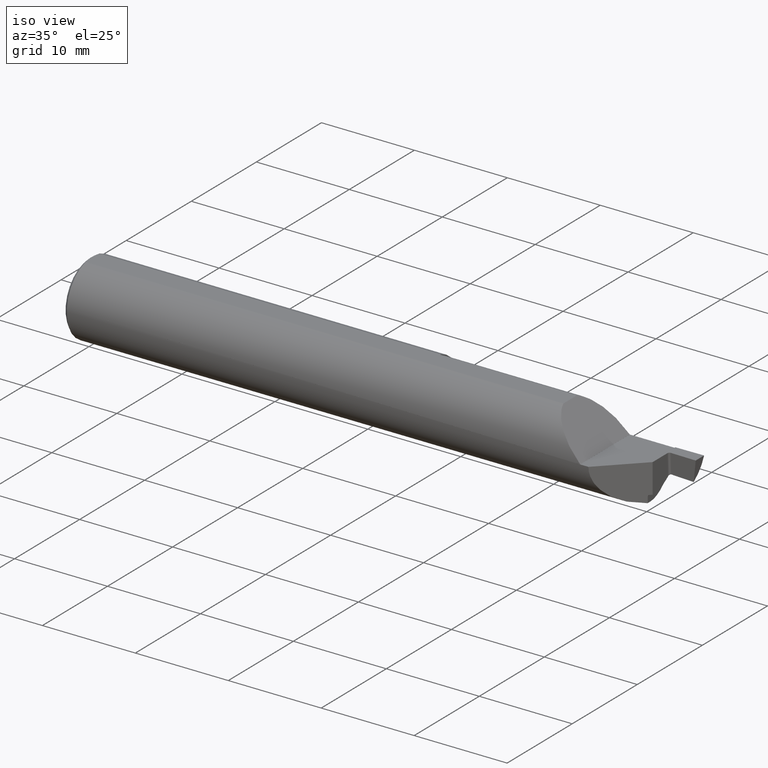
[diagram: clean part render]
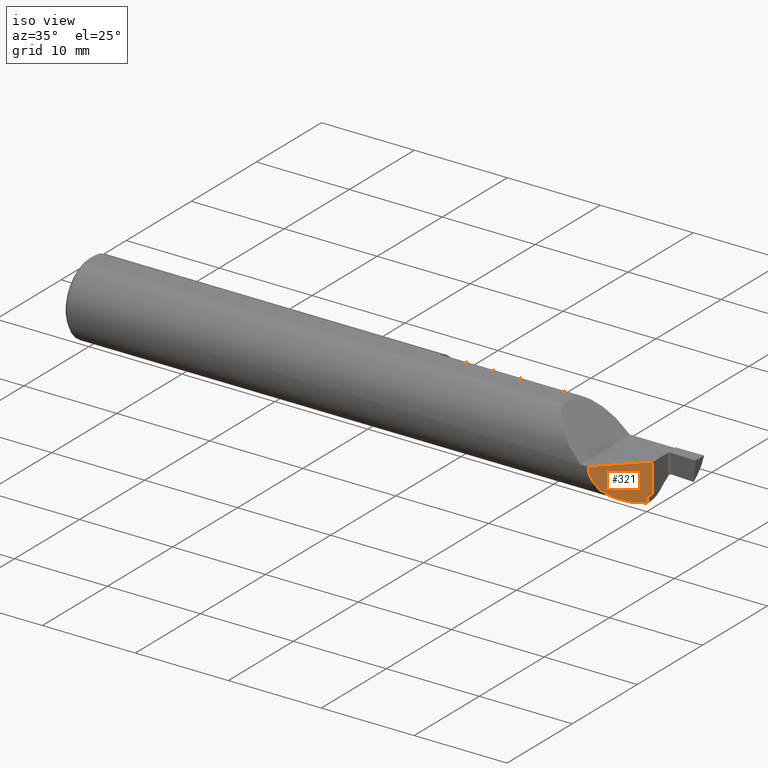
[diagram: same view with one face highlighted and labeled with its STEP entity id]
A machine part, iso view. The second image highlights one B-rep face of the part: STEP entity #321.
In plain terms, the highlighted planar face has unit normal (-0.7071, 0.7071, 0).
Its self-contained STEP definition (entity closure, byte-faithful):
#13 = EDGE_LOOP ( 'NONE', ( #710, #538, #736, #386, #478, #340 ) ) ;
#17 = VERTEX_POINT ( 'NONE', #357 ) ;
#26 = CARTESIAN_POINT ( 'NONE',  ( 2.377763926017768981, -0.003336073982230913955, -0.1249361410656338184 ) ) ;
#41 = VERTEX_POINT ( 'NONE', #504 ) ;
#67 = DIRECTION ( 'NONE',  ( 0.000000000000000000, 0.000000000000000000, -1.000000000000000000 ) ) ;
#81 = PLANE ( 'NONE',  #327 ) ;
#113 = EDGE_CURVE ( 'NONE', #186, #148, #396, .T. ) ;
#145 = CARTESIAN_POINT ( 'NONE',  ( 2.377763926017768981, -0.003336073982230913955, -0.1249361410656338184 ) ) ;
#148 = VERTEX_POINT ( 'NONE', #774 ) ;
#150 = CARTESIAN_POINT ( 'NONE',  ( 2.373633180895108996, -0.007466819104891537703, -0.1267740301659952828 ) ) ;
#167 = EDGE_CURVE ( 'NONE', #204, #41, #586, .T. ) ;
#176 = EDGE_CURVE ( 'NONE', #539, #186, #313, .T. ) ;
#186 = VERTEX_POINT ( 'NONE', #447 ) ;
#187 = B_SPLINE_CURVE_WITH_KNOTS ( 'NONE', 3,
 ( #276, #212, #150, #793, #272, #26 ),
 .UNSPECIFIED., .F., .F.,
 ( 4, 2, 4 ),
 ( 0.000000000000000000, 0.0001183898561048860596, 0.0002367797122097721192 ),
 .UNSPECIFIED. ) ;
#199 = CARTESIAN_POINT ( 'NONE',  ( 2.157499999999999751, -0.2235999999999995491, 0.000000000000000000 ) ) ;
#203 = CARTESIAN_POINT ( 'NONE',  ( 2.385000000000000231, 0.003900000000000025408, -0.1249751148411059609 ) ) ;
#204 = VERTEX_POINT ( 'NONE', #203 ) ;
#212 = CARTESIAN_POINT ( 'NONE',  ( 2.372848955506935642, -0.008251044493063981050, -0.1281467683057909701 ) ) ;
#217 = FACE_OUTER_BOUND ( 'NONE', #13, .T. ) ;
#240 = EDGE_CURVE ( 'NONE', #148, #41, #521, .T. ) ;
#272 = CARTESIAN_POINT ( 'NONE',  ( 2.376656873800778502, -0.004443126199221629144, -0.1249043962154921389 ) ) ;
#276 = CARTESIAN_POINT ( 'NONE',  ( 2.372848955506936086, -0.008251044493063981050, -0.1297264338229360825 ) ) ;
#302 = VECTOR ( 'NONE', #823, 39.37007874015748143 ) ;
#313 = LINE ( 'NONE', #654, #408 ) ;
#321 = ADVANCED_FACE ( 'NONE', ( #217 ), #81, .F. ) ;
#327 = AXIS2_PLACEMENT_3D ( 'NONE', #483, #673, #332 ) ;
#332 = DIRECTION ( 'NONE',  ( -0.7071067811865486830, -0.7071067811865464625, 0.000000000000000000 ) ) ;
#335 = EDGE_CURVE ( 'NONE', #539, #17, #187, .T. ) ;
#340 = ORIENTED_EDGE ( 'NONE', *, *, #240, .F. ) ;
#356 = VECTOR ( 'NONE', #721, 39.37007874015748143 ) ;
#357 = CARTESIAN_POINT ( 'NONE',  ( 2.377763926017768981, -0.003336073982230913955, -0.1249361410656338184 ) ) ;
#366 = CARTESIAN_POINT ( 'NONE',  ( 2.285319229756169968, -0.09578077024382962434, -0.1512487100964495512 ) ) ;
#384 = EDGE_CURVE ( 'NONE', #17, #204, #582, .T. ) ;
#386 = ORIENTED_EDGE ( 'NONE', *, *, #384, .T. ) ;
#396 =( BOUNDED_CURVE ( )  B_SPLINE_CURVE ( 3, ( #698, #366, #640, #507 ),
 .UNSPECIFIED., .F., .F. ) 
 B_SPLINE_CURVE_WITH_KNOTS ( ( 4, 4 ),
 ( 4.765271052396672147, 6.283185307179586232 ),
 .UNSPECIFIED. ) 
 CURVE ( )  GEOMETRIC_REPRESENTATION_ITEM ( )  RATIONAL_B_SPLINE_CURVE ( ( 1.000000000000000000, 0.8170360491703279049, 0.8170360491703279049, 1.000000000000000000 ) ) 
 REPRESENTATION_ITEM ( '' )  );
#408 = VECTOR ( 'NONE', #67, 39.37007874015748143 ) ;
#447 = CARTESIAN_POINT ( 'NONE',  ( 2.372848955506936086, -0.008251044493063981050, -0.1558817829791970255 ) ) ;
#478 = ORIENTED_EDGE ( 'NONE', *, *, #167, .T. ) ;
#483 = CARTESIAN_POINT ( 'NONE',  ( 2.385000000000000231, 0.003900000000000025408, -0.1560999999999999888 ) ) ;
#504 = CARTESIAN_POINT ( 'NONE',  ( 2.385000000000000231, 0.003900000000000025408, 0.000000000000000000 ) ) ;
#507 = CARTESIAN_POINT ( 'NONE',  ( 2.224999999999999645, -0.1560999999999999888, 0.000000000000000000 ) ) ;
#521 = LINE ( 'NONE', #199, #356 ) ;
#538 = ORIENTED_EDGE ( 'NONE', *, *, #176, .F. ) ;
#539 = VERTEX_POINT ( 'NONE', #745 ) ;
#541 = CARTESIAN_POINT ( 'NONE',  ( 2.380175411463856694, -0.0009245885361431779815, -0.1250052906892286653 ) ) ;
#546 = CARTESIAN_POINT ( 'NONE',  ( 2.385000000000000231, 0.003900000000000025408, -0.1249751148411059609 ) ) ;
#582 =( BOUNDED_CURVE ( )  B_SPLINE_CURVE ( 3, ( #145, #541, #796, #546 ),
 .UNSPECIFIED., .F., .F. ) 
 B_SPLINE_CURVE_WITH_KNOTS ( ( 4, 4 ),
 ( 1.541615633188518908, 1.589012014906514780 ),
 .UNSPECIFIED. ) 
 CURVE ( )  GEOMETRIC_REPRESENTATION_ITEM ( )  RATIONAL_B_SPLINE_CURVE ( ( 1.000000000000000000, 0.9998128073442653641, 0.9998128073442653641, 1.000000000000000000 ) ) 
 REPRESENTATION_ITEM ( '' )  );
#586 = LINE ( 'NONE', #645, #302 ) ;
#640 = CARTESIAN_POINT ( 'NONE',  ( 2.225000000000000089, -0.1560999999999999888, -0.08765225755416182485 ) ) ;
#645 = CARTESIAN_POINT ( 'NONE',  ( 2.385000000000000231, 0.003900000000000025408, -0.1560999999999999888 ) ) ;
#654 = CARTESIAN_POINT ( 'NONE',  ( 2.372848955506936086, -0.008251044493063981050, 0.02500000000000001180 ) ) ;
#673 = DIRECTION ( 'NONE',  ( -0.7071067811865464625, 0.7071067811865486830, 0.000000000000000000 ) ) ;
#698 = CARTESIAN_POINT ( 'NONE',  ( 2.372848955506936086, -0.008251044493063981050, -0.1558817829791970255 ) ) ;
#710 = ORIENTED_EDGE ( 'NONE', *, *, #113, .F. ) ;
#721 = DIRECTION ( 'NONE',  ( 0.7071067811865486830, 0.7071067811865464625, 0.000000000000000000 ) ) ;
#736 = ORIENTED_EDGE ( 'NONE', *, *, #335, .T. ) ;
#745 = CARTESIAN_POINT ( 'NONE',  ( 2.372848955506936086, -0.008251044493063981050, -0.1297264338229360825 ) ) ;
#774 = CARTESIAN_POINT ( 'NONE',  ( 2.224999999999999645, -0.1560999999999999888, 0.000000000000000000 ) ) ;
#793 = CARTESIAN_POINT ( 'NONE',  ( 2.375546904914428659, -0.005553095085571360841, -0.1252188016297557382 ) ) ;
#796 = CARTESIAN_POINT ( 'NONE',  ( 2.382587887722438236, 0.001487887722438239893, -0.1250182843800428933 ) ) ;
#823 = DIRECTION ( 'NONE',  ( -0.000000000000000000, -0.000000000000000000, 1.000000000000000000 ) ) ;